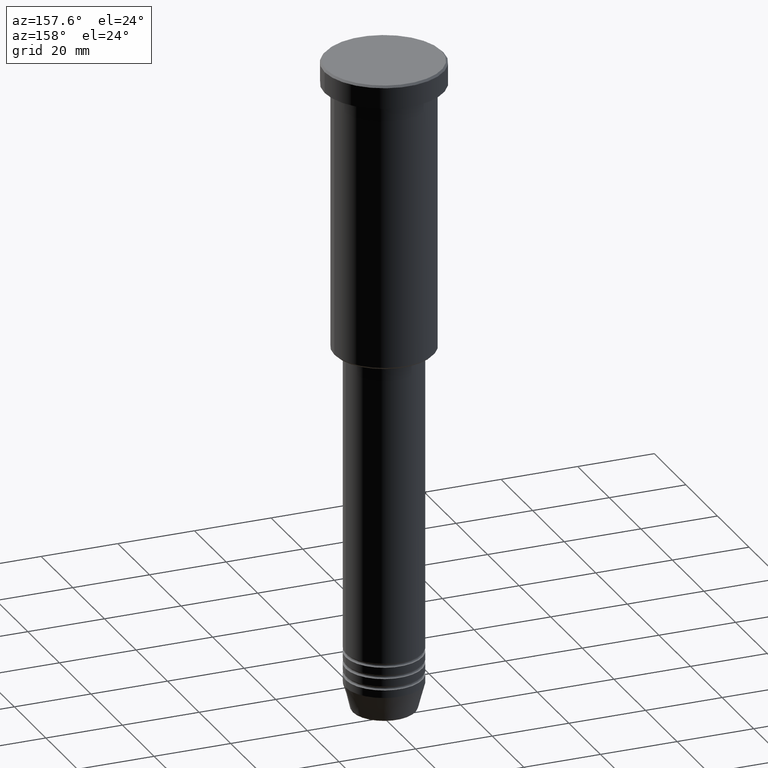
[diagram: clean part render]
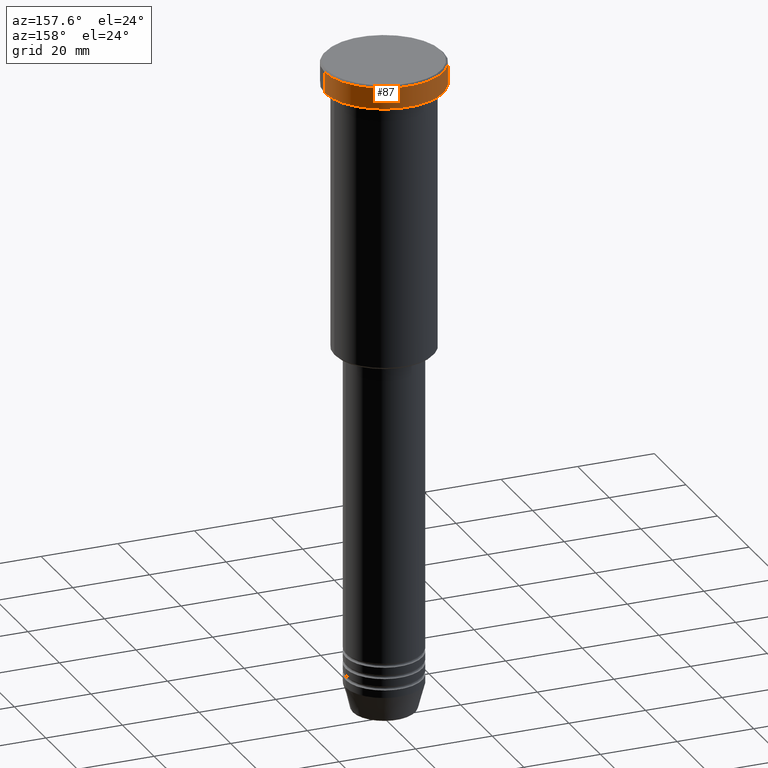
[diagram: same view with one face highlighted and labeled with its STEP entity id]
A machine part, auxiliary view. The second image highlights one B-rep face of the part: STEP entity #87.
In plain terms, the highlighted cylindrical surface (partial cylindrical patch) has radius 15.5 mm, axis along (-0, -0, 1).
Its self-contained STEP definition (entity closure, byte-faithful):
#17 = EDGE_CURVE ( 'NONE', #898, #645, #658, .T. ) ;
#19 = LINE ( 'NONE', #670, #857 ) ;
#70 = CARTESIAN_POINT ( 'NONE',  ( -15.50000000000000000, 1.898202538678397557E-15, -5.999999999999995559 ) ) ;
#87 = ADVANCED_FACE ( 'NONE', ( #1078 ), #239, .T. ) ;
#96 = DIRECTION ( 'NONE',  ( 1.000000000000000000, 0.000000000000000000, 0.000000000000000000 ) ) ;
#239 = CYLINDRICAL_SURFACE ( 'NONE', #1122, 15.50000000000000000 ) ;
#282 = DIRECTION ( 'NONE',  ( 1.000000000000000000, 0.000000000000000000, 0.000000000000000000 ) ) ;
#322 = ORIENTED_EDGE ( 'NONE', *, *, #17, .F. ) ;
#364 = VECTOR ( 'NONE', #667, 1000.000000000000000 ) ;
#371 = CIRCLE ( 'NONE', #695, 15.50000000000000000 ) ;
#472 = CARTESIAN_POINT ( 'NONE',  ( 0.000000000000000000, 0.000000000000000000, -5.999999999999995559 ) ) ;
#480 = ORIENTED_EDGE ( 'NONE', *, *, #843, .T. ) ;
#494 = DIRECTION ( 'NONE',  ( -0.000000000000000000, -0.000000000000000000, 1.000000000000000000 ) ) ;
#520 = EDGE_LOOP ( 'NONE', ( #1031, #901, #480, #322 ) ) ;
#571 = DIRECTION ( 'NONE',  ( -0.000000000000000000, -0.000000000000000000, 1.000000000000000000 ) ) ;
#613 = DIRECTION ( 'NONE',  ( 1.000000000000000000, 0.000000000000000000, 0.000000000000000000 ) ) ;
#645 = VERTEX_POINT ( 'NONE', #718 ) ;
#654 = VERTEX_POINT ( 'NONE', #1153 ) ;
#657 = CIRCLE ( 'NONE', #1145, 15.50000000000000000 ) ;
#658 = LINE ( 'NONE', #937, #364 ) ;
#667 = DIRECTION ( 'NONE',  ( -0.000000000000000000, -0.000000000000000000, 1.000000000000000000 ) ) ;
#670 = CARTESIAN_POINT ( 'NONE',  ( -15.50000000000000000, 1.898202538678397557E-15, 0.000000000000000000 ) ) ;
#695 = AXIS2_PLACEMENT_3D ( 'NONE', #1013, #756, #282 ) ;
#718 = CARTESIAN_POINT ( 'NONE',  ( 15.50000000000000000, 0.000000000000000000, -0.5000000000000125455 ) ) ;
#750 = EDGE_CURVE ( 'NONE', #898, #1018, #657, .T. ) ;
#756 = DIRECTION ( 'NONE',  ( 0.000000000000000000, 0.000000000000000000, -1.000000000000000000 ) ) ;
#843 = EDGE_CURVE ( 'NONE', #654, #645, #371, .T. ) ;
#857 = VECTOR ( 'NONE', #494, 1000.000000000000000 ) ;
#860 = EDGE_CURVE ( 'NONE', #1018, #654, #19, .T. ) ;
#883 = DIRECTION ( 'NONE',  ( -0.000000000000000000, -0.000000000000000000, 1.000000000000000000 ) ) ;
#898 = VERTEX_POINT ( 'NONE', #949 ) ;
#901 = ORIENTED_EDGE ( 'NONE', *, *, #860, .T. ) ;
#937 = CARTESIAN_POINT ( 'NONE',  ( 15.50000000000000000, 0.000000000000000000, 0.000000000000000000 ) ) ;
#949 = CARTESIAN_POINT ( 'NONE',  ( 15.50000000000000000, 0.000000000000000000, -5.999999999999995559 ) ) ;
#1013 = CARTESIAN_POINT ( 'NONE',  ( 0.000000000000000000, 0.000000000000000000, -0.5000000000000125455 ) ) ;
#1018 = VERTEX_POINT ( 'NONE', #70 ) ;
#1031 = ORIENTED_EDGE ( 'NONE', *, *, #750, .T. ) ;
#1070 = CARTESIAN_POINT ( 'NONE',  ( 0.000000000000000000, 0.000000000000000000, 0.000000000000000000 ) ) ;
#1078 = FACE_OUTER_BOUND ( 'NONE', #520, .T. ) ;
#1122 = AXIS2_PLACEMENT_3D ( 'NONE', #1070, #883, #613 ) ;
#1145 = AXIS2_PLACEMENT_3D ( 'NONE', #472, #571, #96 ) ;
#1153 = CARTESIAN_POINT ( 'NONE',  ( -15.50000000000000000, 1.898202538678397557E-15, -0.5000000000000125455 ) ) ;